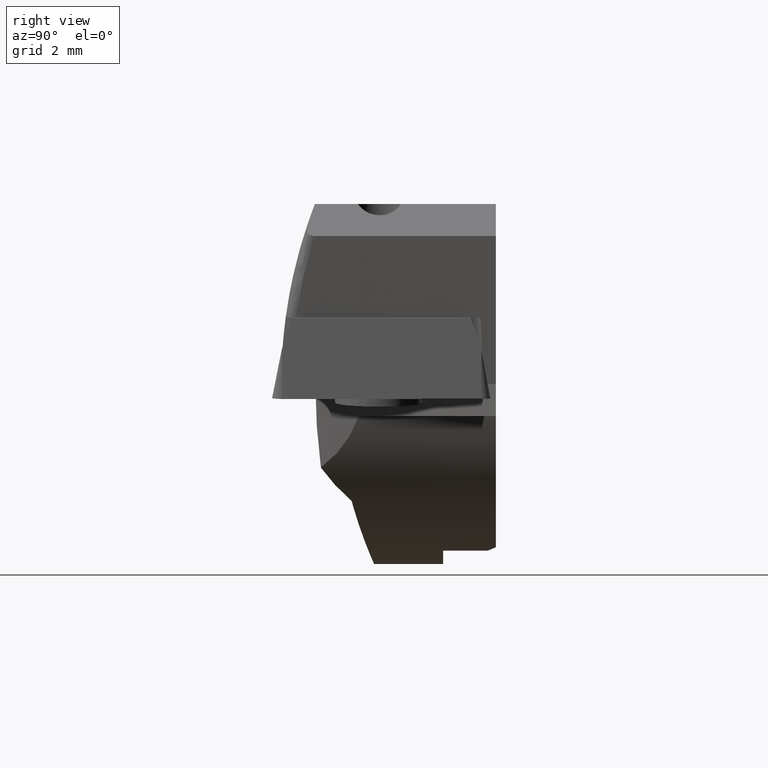
[diagram: clean part render]
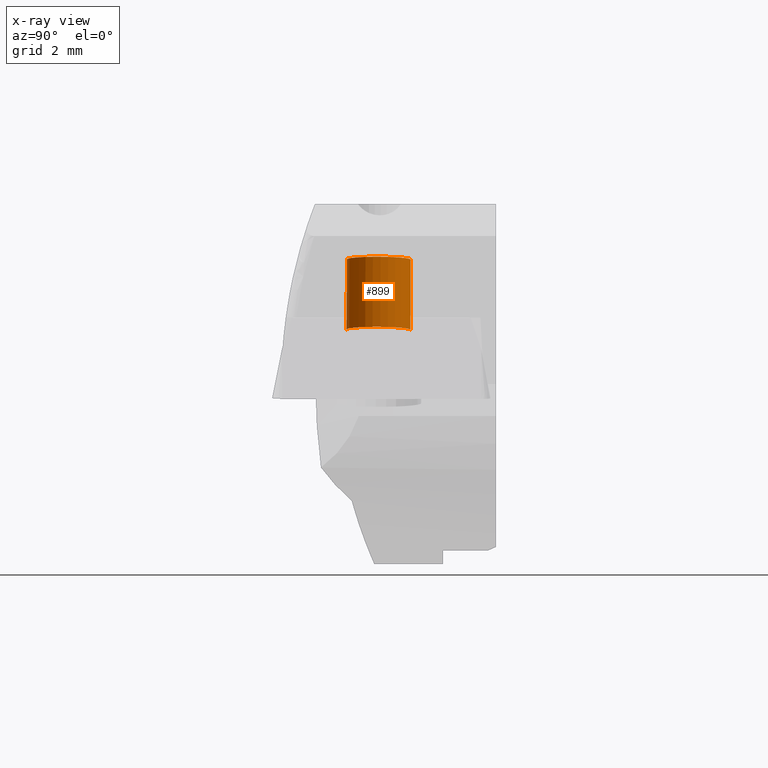
[diagram: x-ray — body ghosted, one internal face saturated and labeled with its STEP entity id]
A machine part, right view, then the same camera in x-ray: the body is ghosted and one INTERNAL B-rep face — a face not visible from any outside direction — is saturated and labeled: STEP entity #899.
In plain terms, the highlighted cylindrical surface (edge-blend (fillet) strip) has radius 1 mm, axis along (-0.087, -0.0046, -0.9962).
Its self-contained STEP definition (entity closure, byte-faithful):
#661=VERTEX_POINT('NONE',#1665);
#705=VERTEX_POINT('NONE',#1712);
#859=EDGE_CURVE('NONE',#1191,#705,#1881,.T.);
#873=EDGE_CURVE('NONE',#1149,#661,#1896,.T.);
#899=ADVANCED_FACE('NONE',(#1923),#1924,.T.);
#1149=VERTEX_POINT('NONE',#2206);
#1191=VERTEX_POINT('NONE',#2253);
#1195=EDGE_CURVE('NONE',#1149,#1191,#2257,.T.);
#1261=EDGE_CURVE('NONE',#661,#705,#2329,.T.);
#1665=CARTESIAN_POINT('',(11.0468365389928,-2.66344018433649,3.8901044487315));
#1712=CARTESIAN_POINT('',(10.855356681564,-2.67347521844176,1.69847611292966));
#1881=CIRCLE('',#3763,1.0);
#1896=CIRCLE('',#3782,1.0);
#1923=FACE_OUTER_BOUND('',#3831,.T.);
#1924=CYLINDRICAL_SURFACE('',#3832,1.0);
#2206=CARTESIAN_POINT('',(11.1769034505776,-4.65920511171253,3.88787887768259));
#2253=CARTESIAN_POINT('',(10.9854235931488,-4.6692401458178,1.69625054188075));
#2257=LINE('',#4370,#4371);
#2329=LINE('',#4470,#4471);
#3763=AXIS2_PLACEMENT_3D('',#5301,#5302,#5303);
#3782=AXIS2_PLACEMENT_3D('',#5319,#5320,#5321);
#3831=EDGE_LOOP('',(#5345,#5346,#5347,#5348));
#3832=AXIS2_PLACEMENT_3D('',#5349,#5350,#5351);
#4370=CARTESIAN_POINT('',(10.66299584661,-4.68613786799312,-1.99417306220907));
#4371=VECTOR('',#5785,1000.0);
#4470=CARTESIAN_POINT('',(10.5329289350252,-2.69037294061708,-1.99194749116016));
#4471=VECTOR('',#5863,1000.0);
#5301=CARTESIAN_POINT('',(10.9203901373564,-3.67135768212978,1.6973633274052));
#5302=DIRECTION('',(-0.087036298831284,-0.00456137913875937,-0.996194698091746));
#5303=DIRECTION('',(0.0650334557923866,-0.997882463688022,-0.0011127855244566));
#5319=CARTESIAN_POINT('',(11.1118699947852,-3.66132264802451,3.88899166320704));
#5320=DIRECTION('',(-0.087036298831284,-0.00456137913875937,-0.996194698091746));
#5321=DIRECTION('',(0.0650334557923866,-0.997882463688022,-0.0011127855244566));
#5345=ORIENTED_EDGE('',*,*,#873,.T.);
#5346=ORIENTED_EDGE('',*,*,#1261,.T.);
#5347=ORIENTED_EDGE('',*,*,#859,.F.);
#5348=ORIENTED_EDGE('',*,*,#1195,.F.);
#5349=CARTESIAN_POINT('',(10.5979623908176,-3.6882554043051,-1.99306027668462));
#5350=DIRECTION('',(-0.087036298831284,-0.00456137913875937,-0.996194698091746));
#5351=DIRECTION('',(0.0650334557923866,-0.997882463688022,-0.0011127855244566));
#5785=DIRECTION('',(-0.0870362988312839,-0.00456137913875937,-0.996194698091745));
#5863=DIRECTION('',(-0.0870362988312839,-0.00456137913875937,-0.996194698091745));